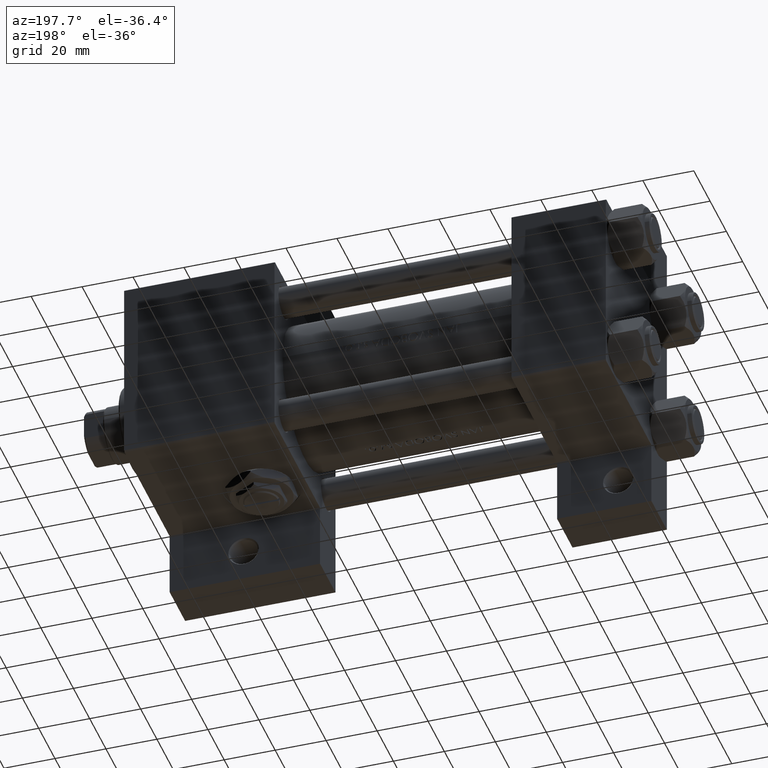
[diagram: clean part render]
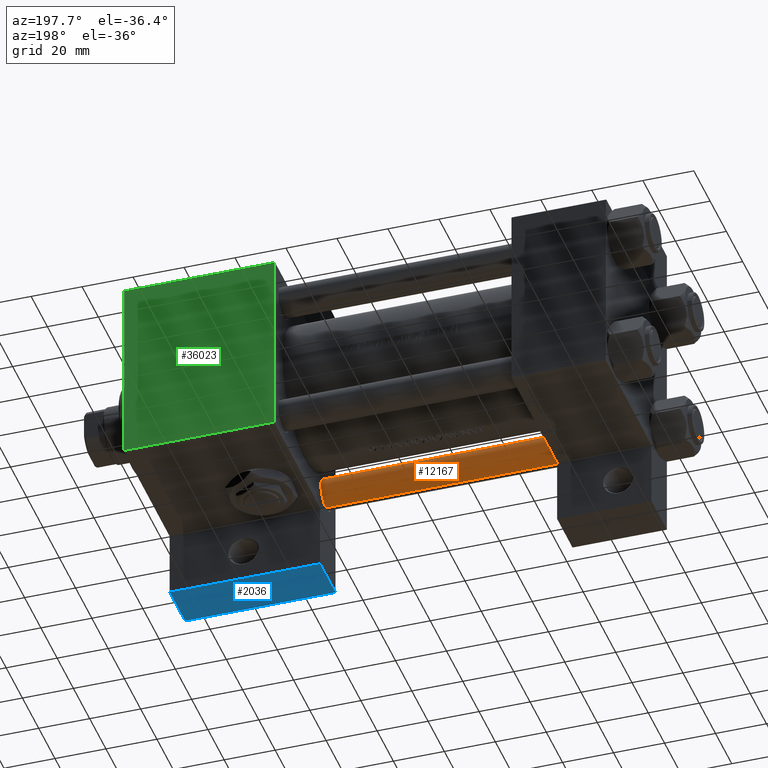
[diagram: same view with three faces highlighted in distinct colors, each labeled with its STEP entity id]
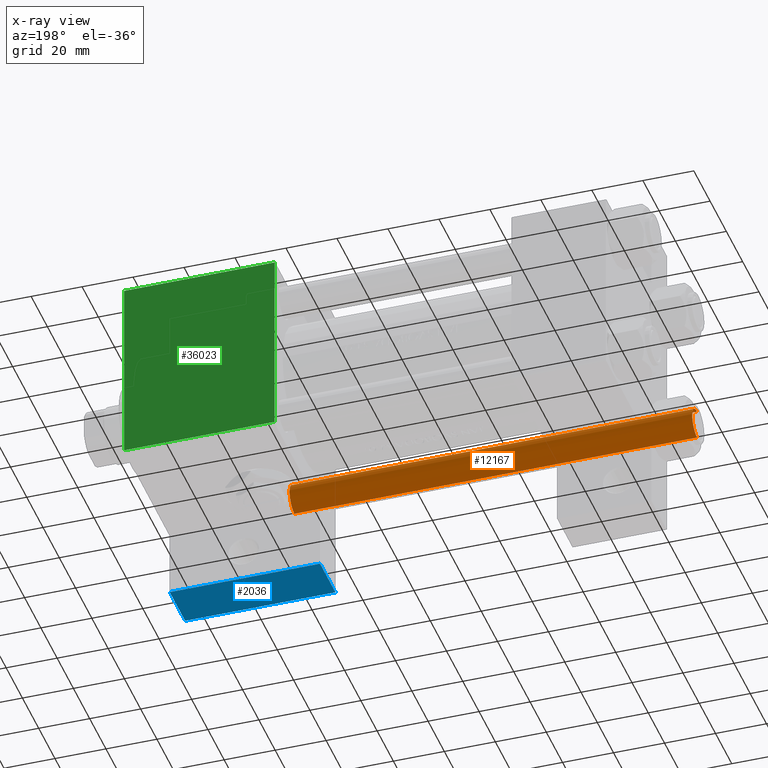
[diagram: x-ray of the same camera — body ghosted, the three highlighted faces saturated]
A machine part, auxiliary view with three faces highlighted in distinct colors.
The next image is the same camera in x-ray (body ghosted, the three faces saturated) — at least one of them is partly hidden behind the body in this view.
Their STEP definitions:

[orange] entity #12167 — the highlighted cylindrical surface (edge-blend (fillet) strip) has radius 6 mm, axis along (-1, 0, 0).
#853 = DIRECTION ( 'NONE',  ( -0.000000000000000000, -0.000000000000000000, -1.000000000000000000 ) ) ;
#901 = AXIS2_PLACEMENT_3D ( 'NONE', #9225, #36565, #40310 ) ;
#983 = DIRECTION ( 'NONE',  ( -0.000000000000000000, -0.000000000000000000, 1.000000000000000000 ) ) ;
#4434 = ORIENTED_EDGE ( 'NONE', *, *, #17791, .T. ) ;
#4819 = AXIS2_PLACEMENT_3D ( 'NONE', #5442, #983, #17124 ) ;
#5013 = ORIENTED_EDGE ( 'NONE', *, *, #22861, .T. ) ;
#5442 = CARTESIAN_POINT ( 'NONE',  ( 0.000000000000000000, 0.000000000000000000, 0.5000000000001669775 ) ) ;
#5599 = CIRCLE ( 'NONE', #4819, 6.000000000000000888 ) ;
#7463 = ORIENTED_EDGE ( 'NONE', *, *, #8358, .F. ) ;
#7522 = CARTESIAN_POINT ( 'NONE',  ( 6.000000000000000888, 7.347880794884119736E-16, 0.5000000000001669775 ) ) ;
#8358 = EDGE_CURVE ( 'NONE', #17177, #36501, #15290, .T. ) ;
#9072 = VERTEX_POINT ( 'NONE', #26127 ) ;
#9225 = CARTESIAN_POINT ( 'NONE',  ( 0.000000000000000000, 0.000000000000000000, 158.5000000000000568 ) ) ;
#9410 = AXIS2_PLACEMENT_3D ( 'NONE', #37271, #14855, #29312 ) ;
#12167 = ADVANCED_FACE ( 'NONE', ( #40775 ), #44516, .T. ) ;
#13181 = CARTESIAN_POINT ( 'NONE',  ( -6.000000000000000888, 0.000000000000000000, 158.5000000000000568 ) ) ;
#14740 = CARTESIAN_POINT ( 'NONE',  ( -6.000000000000000888, 0.000000000000000000, 159.0000000000000000 ) ) ;
#14855 = DIRECTION ( 'NONE',  ( -0.000000000000000000, -0.000000000000000000, -1.000000000000000000 ) ) ;
#15238 = DIRECTION ( 'NONE',  ( -0.000000000000000000, -0.000000000000000000, -1.000000000000000000 ) ) ;
#15290 = LINE ( 'NONE', #30466, #41100 ) ;
#17124 = DIRECTION ( 'NONE',  ( 1.000000000000000000, 0.000000000000000000, 0.000000000000000000 ) ) ;
#17177 = VERTEX_POINT ( 'NONE', #42200 ) ;
#17791 = EDGE_CURVE ( 'NONE', #9072, #36501, #5599, .T. ) ;
#19950 = EDGE_LOOP ( 'NONE', ( #7463, #5013, #30579, #4434 ) ) ;
#22861 = EDGE_CURVE ( 'NONE', #17177, #40684, #31094, .T. ) ;
#26127 = CARTESIAN_POINT ( 'NONE',  ( -6.000000000000000888, 0.000000000000000000, 0.5000000000001669775 ) ) ;
#29312 = DIRECTION ( 'NONE',  ( -1.000000000000000000, 0.000000000000000000, 0.000000000000000000 ) ) ;
#30466 = CARTESIAN_POINT ( 'NONE',  ( 6.000000000000000888, 7.347880794884119736E-16, 159.0000000000000000 ) ) ;
#30579 = ORIENTED_EDGE ( 'NONE', *, *, #46348, .T. ) ;
#31094 = CIRCLE ( 'NONE', #901, 6.000000000000000888 ) ;
#31102 = VECTOR ( 'NONE', #15238, 1000.000000000000000 ) ;
#36501 = VERTEX_POINT ( 'NONE', #7522 ) ;
#36565 = DIRECTION ( 'NONE',  ( 0.000000000000000000, 0.000000000000000000, -1.000000000000000000 ) ) ;
#37271 = CARTESIAN_POINT ( 'NONE',  ( 0.000000000000000000, 0.000000000000000000, 159.0000000000000000 ) ) ;
#40310 = DIRECTION ( 'NONE',  ( 1.000000000000000000, 0.000000000000000000, 0.000000000000000000 ) ) ;
#40684 = VERTEX_POINT ( 'NONE', #13181 ) ;
#40775 = FACE_OUTER_BOUND ( 'NONE', #19950, .T. ) ;
#41100 = VECTOR ( 'NONE', #853, 1000.000000000000000 ) ;
#41630 = LINE ( 'NONE', #14740, #31102 ) ;
#42200 = CARTESIAN_POINT ( 'NONE',  ( 6.000000000000000888, 7.347880794884119736E-16, 158.5000000000000568 ) ) ;
#44516 = CYLINDRICAL_SURFACE ( 'NONE', #9410, 6.000000000000000888 ) ;
#46348 = EDGE_CURVE ( 'NONE', #40684, #9072, #41630, .T. ) ;

[blue] entity #2036 — the highlighted planar face has unit normal (-0, 0, -1).
#267 = CARTESIAN_POINT ( 'NONE',  ( 130.0000000000000284, 63.49999999999997158, -18.50000000000000000 ) ) ;
#425 = VERTEX_POINT ( 'NONE', #11503 ) ;
#935 = LINE ( 'NONE', #19599, #15096 ) ;
#2036 = ADVANCED_FACE ( 'NONE', ( #18921 ), #41102, .T. ) ;
#9802 = CARTESIAN_POINT ( 'NONE',  ( 130.0000000000000284, 63.49999999999997158, -18.50000000000000000 ) ) ;
#10201 = LINE ( 'NONE', #36818, #15710 ) ;
#10701 = VERTEX_POINT ( 'NONE', #34757 ) ;
#11009 = LINE ( 'NONE', #30168, #15424 ) ;
#11503 = CARTESIAN_POINT ( 'NONE',  ( 189.0000000000000284, 63.50000000000000000, -18.50000000000000000 ) ) ;
#12146 = DIRECTION ( 'NONE',  ( 0.000000000000000000, 0.000000000000000000, -1.000000000000000000 ) ) ;
#12692 = CARTESIAN_POINT ( 'NONE',  ( 189.0000000000000284, 63.50000000000000000, -37.50000000000000000 ) ) ;
#15096 = VECTOR ( 'NONE', #38765, 1000.000000000000000 ) ;
#15424 = VECTOR ( 'NONE', #40902, 1000.000000000000000 ) ;
#15710 = VECTOR ( 'NONE', #12146, 1000.000000000000000 ) ;
#16870 = EDGE_CURVE ( 'NONE', #10701, #37331, #935, .T. ) ;
#17279 = ORIENTED_EDGE ( 'NONE', *, *, #37520, .F. ) ;
#18105 = VERTEX_POINT ( 'NONE', #9802 ) ;
#18921 = FACE_OUTER_BOUND ( 'NONE', #44838, .T. ) ;
#19031 = ORIENTED_EDGE ( 'NONE', *, *, #29885, .T. ) ;
#19599 = CARTESIAN_POINT ( 'NONE',  ( 130.0000000000000284, 63.49999999999997158, -37.50000000000000000 ) ) ;
#19929 = VECTOR ( 'NONE', #23027, 1000.000000000000000 ) ;
#21337 = EDGE_CURVE ( 'NONE', #18105, #425, #48709, .T. ) ;
#23027 = DIRECTION ( 'NONE',  ( 1.000000000000000000, 4.704334850106595794E-16, 0.000000000000000000 ) ) ;
#23794 = ORIENTED_EDGE ( 'NONE', *, *, #16870, .F. ) ;
#25568 = AXIS2_PLACEMENT_3D ( 'NONE', #267, #41833, #48601 ) ;
#29756 = CARTESIAN_POINT ( 'NONE',  ( 130.0000000000000284, 63.49999999999997158, -18.50000000000000000 ) ) ;
#29885 = EDGE_CURVE ( 'NONE', #425, #37331, #11009, .T. ) ;
#30168 = CARTESIAN_POINT ( 'NONE',  ( 189.0000000000000284, 63.50000000000000000, -18.50000000000000000 ) ) ;
#34757 = CARTESIAN_POINT ( 'NONE',  ( 130.0000000000000284, 63.49999999999997158, -37.50000000000000000 ) ) ;
#35905 = ORIENTED_EDGE ( 'NONE', *, *, #21337, .T. ) ;
#36818 = CARTESIAN_POINT ( 'NONE',  ( 130.0000000000000284, 63.49999999999997158, -18.50000000000000000 ) ) ;
#37331 = VERTEX_POINT ( 'NONE', #12692 ) ;
#37520 = EDGE_CURVE ( 'NONE', #18105, #10701, #10201, .T. ) ;
#38765 = DIRECTION ( 'NONE',  ( 1.000000000000000000, 4.704334850106595794E-16, 0.000000000000000000 ) ) ;
#40902 = DIRECTION ( 'NONE',  ( 0.000000000000000000, 0.000000000000000000, -1.000000000000000000 ) ) ;
#41102 = PLANE ( 'NONE',  #25568 ) ;
#41833 = DIRECTION ( 'NONE',  ( -4.704334850106595794E-16, 1.000000000000000000, 0.000000000000000000 ) ) ;
#44838 = EDGE_LOOP ( 'NONE', ( #23794, #17279, #35905, #19031 ) ) ;
#48601 = DIRECTION ( 'NONE',  ( -1.000000000000000000, -4.704334850106595794E-16, 0.000000000000000000 ) ) ;
#48709 = LINE ( 'NONE', #29756, #19929 ) ;

[green] entity #36023 — the highlighted planar face has unit normal (0, -1, -0).
#309 = DIRECTION ( 'NONE',  ( 0.000000000000000000, -1.000000000000000000, -1.850371707708594316E-16 ) ) ;
#2782 = EDGE_CURVE ( 'NONE', #28864, #41411, #48110, .T. ) ;
#3468 = LINE ( 'NONE', #45778, #39751 ) ;
#3753 = EDGE_CURVE ( 'NONE', #21434, #28864, #41557, .T. ) ;
#3814 = ORIENTED_EDGE ( 'NONE', *, *, #2782, .T. ) ;
#4164 = DIRECTION ( 'NONE',  ( 0.000000000000000000, 1.000000000000000000, 1.850371707708594316E-16 ) ) ;
#5174 = EDGE_CURVE ( 'NONE', #30950, #41411, #46625, .T. ) ;
#7439 = DIRECTION ( 'NONE',  ( 0.000000000000000000, -1.000000000000000000, -1.850371707708594316E-16 ) ) ;
#8556 = CARTESIAN_POINT ( 'NONE',  ( 130.0000000000000000, -36.99999999999997158, 37.49999999999997868 ) ) ;
#13305 = CARTESIAN_POINT ( 'NONE',  ( 189.0000000000000000, -36.99999999999997158, 37.49999999999997868 ) ) ;
#16789 = CARTESIAN_POINT ( 'NONE',  ( 130.0000000000000000, 37.00000000000000000, 37.49999999999999289 ) ) ;
#17224 = VECTOR ( 'NONE', #309, 1000.000000000000000 ) ;
#17249 = ORIENTED_EDGE ( 'NONE', *, *, #43578, .T. ) ;
#17951 = CARTESIAN_POINT ( 'NONE',  ( 189.0000000000000000, -36.99999999999997158, 37.49999999999997868 ) ) ;
#18489 = CARTESIAN_POINT ( 'NONE',  ( 189.0000000000000000, 37.00000000000000000, 37.49999999999999289 ) ) ;
#19837 = PLANE ( 'NONE',  #33920 ) ;
#21434 = VERTEX_POINT ( 'NONE', #16789 ) ;
#24231 = ORIENTED_EDGE ( 'NONE', *, *, #3753, .T. ) ;
#25943 = ORIENTED_EDGE ( 'NONE', *, *, #5174, .F. ) ;
#27793 = CARTESIAN_POINT ( 'NONE',  ( 189.0000000000000000, 37.50000000000000000, 37.49999999999999289 ) ) ;
#28864 = VERTEX_POINT ( 'NONE', #8556 ) ;
#30950 = VERTEX_POINT ( 'NONE', #18489 ) ;
#31519 = FACE_OUTER_BOUND ( 'NONE', #45335, .T. ) ;
#33920 = AXIS2_PLACEMENT_3D ( 'NONE', #27793, #38250, #4164 ) ;
#36023 = ADVANCED_FACE ( 'NONE', ( #31519 ), #19837, .F. ) ;
#37793 = DIRECTION ( 'NONE',  ( -1.000000000000000000, 0.000000000000000000, 0.000000000000000000 ) ) ;
#38250 = DIRECTION ( 'NONE',  ( 0.000000000000000000, 1.850371707708594316E-16, -1.000000000000000000 ) ) ;
#39751 = VECTOR ( 'NONE', #37793, 1000.000000000000000 ) ;
#40248 = VECTOR ( 'NONE', #7439, 1000.000000000000000 ) ;
#40625 = DIRECTION ( 'NONE',  ( 1.000000000000000000, 0.000000000000000000, 0.000000000000000000 ) ) ;
#41411 = VERTEX_POINT ( 'NONE', #13305 ) ;
#41557 = LINE ( 'NONE', #42040, #40248 ) ;
#42040 = CARTESIAN_POINT ( 'NONE',  ( 130.0000000000000000, 37.50000000000000000, 37.49999999999999289 ) ) ;
#43578 = EDGE_CURVE ( 'NONE', #30950, #21434, #3468, .T. ) ;
#45335 = EDGE_LOOP ( 'NONE', ( #25943, #17249, #24231, #3814 ) ) ;
#45778 = CARTESIAN_POINT ( 'NONE',  ( 130.0000000000000000, 37.00000000000000000, 37.49999999999999289 ) ) ;
#46625 = LINE ( 'NONE', #46868, #17224 ) ;
#46868 = CARTESIAN_POINT ( 'NONE',  ( 189.0000000000000000, 37.50000000000000000, 37.49999999999999289 ) ) ;
#48110 = LINE ( 'NONE', #17951, #48962 ) ;
#48962 = VECTOR ( 'NONE', #40625, 1000.000000000000000 ) ;